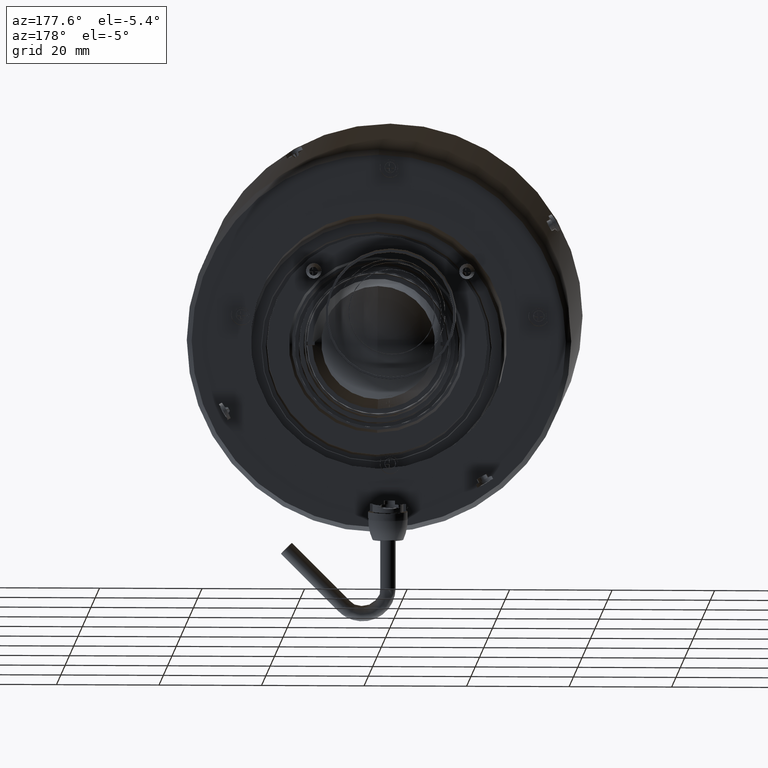
[diagram: clean part render]
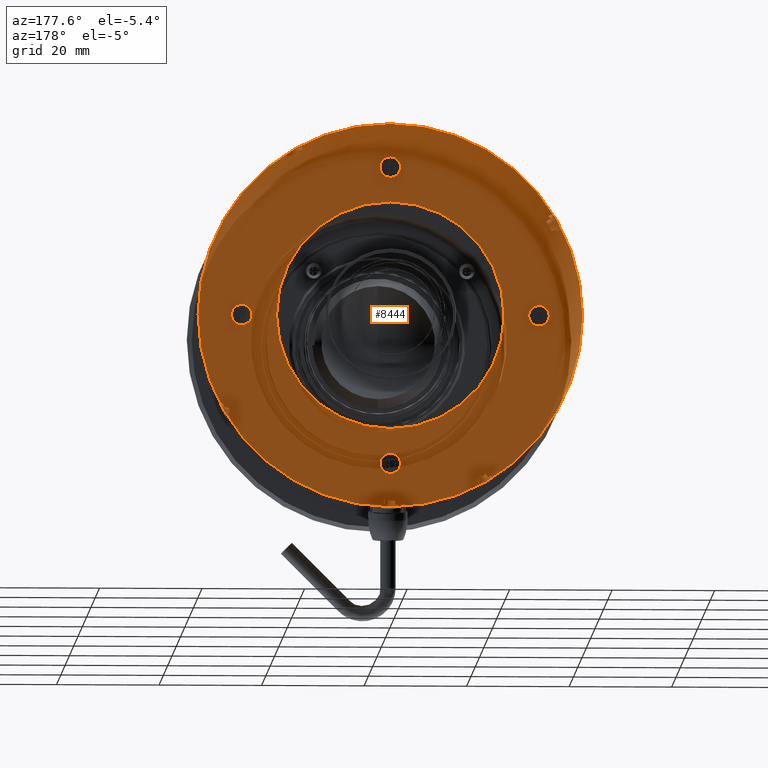
[diagram: same view with one face highlighted and labeled with its STEP entity id]
A machine part, auxiliary view. The second image highlights one B-rep face of the part: STEP entity #8444.
In plain terms, the highlighted planar face has unit normal (-0, -1, 0).
Its self-contained STEP definition (entity closure, byte-faithful):
#31 = EDGE_LOOP ( 'NONE', ( #2455 ) ) ;
#467 = CIRCLE ( 'NONE', #2396, 1.999999999999990008 ) ;
#699 = CIRCLE ( 'NONE', #3586, 1.999999999999990008 ) ;
#733 = CARTESIAN_POINT ( 'NONE',  ( 29.00000000000000000, -17.80000000000010019, -1.999999999999989120 ) ) ;
#1079 = EDGE_LOOP ( 'NONE', ( #7286 ) ) ;
#1389 = CARTESIAN_POINT ( 'NONE',  ( -7.299329788463259972E-16, -17.80000000000010019, 22.19999999999999929 ) ) ;
#1458 = VERTEX_POINT ( 'NONE', #4240 ) ;
#1506 = VERTEX_POINT ( 'NONE', #1389 ) ;
#2072 = FACE_BOUND ( 'NONE', #7245, .T. ) ;
#2283 = DIRECTION ( 'NONE',  ( 0.000000000000000000, 0.000000000000000000, -1.000000000000000000 ) ) ;
#2396 = AXIS2_PLACEMENT_3D ( 'NONE', #4191, #8908, #9872 ) ;
#2455 = ORIENTED_EDGE ( 'NONE', *, *, #3219, .F. ) ;
#2573 = DIRECTION ( 'NONE',  ( -0.000000000000000000, 1.000000000000000000, -0.000000000000000000 ) ) ;
#2637 = EDGE_CURVE ( 'NONE', #1458, #1458, #467, .T. ) ;
#2914 = DIRECTION ( 'NONE',  ( 1.000000000000000000, -6.123031769111889989E-17, 0.000000000000000000 ) ) ;
#3005 = DIRECTION ( 'NONE',  ( -0.000000000000000000, 1.000000000000000000, -6.123031769111880128E-17 ) ) ;
#3024 = DIRECTION ( 'NONE',  ( 0.000000000000000000, -1.000000000000000000, 0.000000000000000000 ) ) ;
#3219 = EDGE_CURVE ( 'NONE', #10944, #10944, #4338, .T. ) ;
#3586 = AXIS2_PLACEMENT_3D ( 'NONE', #10518, #7738, #10402 ) ;
#3860 = CARTESIAN_POINT ( 'NONE',  ( -29.00000000000000000, -17.80000000000010019, -1.999999999999994449 ) ) ;
#4023 = CIRCLE ( 'NONE', #8457, 1.999999999999990008 ) ;
#4191 = CARTESIAN_POINT ( 'NONE',  ( 6.723585862719920633E-16, -17.80000000000010019, -29.00000000000000000 ) ) ;
#4240 = CARTESIAN_POINT ( 'NONE',  ( 1.999999999999990896, -17.80000000000010019, -29.00000000000000000 ) ) ;
#4338 = CIRCLE ( 'NONE', #11477, 37.50000000000000000 ) ;
#4407 = CARTESIAN_POINT ( 'NONE',  ( -7.299329788463259972E-16, -17.80000000000010019, 0.000000000000000000 ) ) ;
#4712 = VERTEX_POINT ( 'NONE', #3860 ) ;
#4731 = FACE_BOUND ( 'NONE', #11391, .T. ) ;
#4741 = EDGE_CURVE ( 'NONE', #9913, #9913, #699, .T. ) ;
#4795 = FACE_BOUND ( 'NONE', #6415, .T. ) ;
#4856 = FACE_BOUND ( 'NONE', #1079, .T. ) ;
#5005 = AXIS2_PLACEMENT_3D ( 'NONE', #6084, #2573, #6931 ) ;
#5474 = ORIENTED_EDGE ( 'NONE', *, *, #7542, .F. ) ;
#5548 = DIRECTION ( 'NONE',  ( 0.000000000000000000, 0.000000000000000000, 1.000000000000000000 ) ) ;
#5773 = CIRCLE ( 'NONE', #5005, 1.999999999999991340 ) ;
#5790 = EDGE_LOOP ( 'NONE', ( #6267 ) ) ;
#5820 = FACE_BOUND ( 'NONE', #5790, .T. ) ;
#6084 = CARTESIAN_POINT ( 'NONE',  ( -7.299329788463259972E-16, -17.80000000000010019, 29.00000000000000000 ) ) ;
#6267 = ORIENTED_EDGE ( 'NONE', *, *, #4741, .F. ) ;
#6415 = EDGE_LOOP ( 'NONE', ( #8360 ) ) ;
#6775 = DIRECTION ( 'NONE',  ( 0.000000000000000000, 0.000000000000000000, -1.000000000000000000 ) ) ;
#6869 = CARTESIAN_POINT ( 'NONE',  ( -29.00000000000000000, -17.80000000000010019, -4.252621500086480250E-15 ) ) ;
#6931 = DIRECTION ( 'NONE',  ( 0.000000000000000000, 0.000000000000000000, -1.000000000000000000 ) ) ;
#7130 = CIRCLE ( 'NONE', #9631, 22.19999999999999929 ) ;
#7245 = EDGE_LOOP ( 'NONE', ( #10012 ) ) ;
#7286 = ORIENTED_EDGE ( 'NONE', *, *, #7758, .F. ) ;
#7512 = CARTESIAN_POINT ( 'NONE',  ( -1.804525055050839976E-15, -17.80000000000010019, 21.00000000000009948 ) ) ;
#7542 = EDGE_CURVE ( 'NONE', #4712, #4712, #4023, .T. ) ;
#7629 = PLANE ( 'NONE',  #11178 ) ;
#7738 = DIRECTION ( 'NONE',  ( -0.000000000000000000, 1.000000000000000000, 6.123031769111889989E-17 ) ) ;
#7758 = EDGE_CURVE ( 'NONE', #10391, #10391, #5773, .T. ) ;
#8090 = DIRECTION ( 'NONE',  ( -0.000000000000000000, 1.000000000000000000, 0.000000000000000000 ) ) ;
#8360 = ORIENTED_EDGE ( 'NONE', *, *, #2637, .F. ) ;
#8444 = ADVANCED_FACE ( 'NONE', ( #9380, #4856, #5820, #4795, #4731, #2072 ), #7629, .F. ) ;
#8457 = AXIS2_PLACEMENT_3D ( 'NONE', #6869, #3005, #2283 ) ;
#8586 = EDGE_CURVE ( 'NONE', #1506, #1506, #7130, .T. ) ;
#8908 = DIRECTION ( 'NONE',  ( 1.224606353822379970E-16, 1.000000000000000000, -0.000000000000000000 ) ) ;
#9380 = FACE_OUTER_BOUND ( 'NONE', #31, .T. ) ;
#9631 = AXIS2_PLACEMENT_3D ( 'NONE', #4407, #8090, #5548 ) ;
#9872 = DIRECTION ( 'NONE',  ( 1.000000000000000000, 0.000000000000000000, 0.000000000000000000 ) ) ;
#9913 = VERTEX_POINT ( 'NONE', #733 ) ;
#10012 = ORIENTED_EDGE ( 'NONE', *, *, #8586, .F. ) ;
#10212 = CARTESIAN_POINT ( 'NONE',  ( 0.000000000000000000, -17.80000000000010019, 0.000000000000000000 ) ) ;
#10226 = DIRECTION ( 'NONE',  ( -6.123031769111889989E-17, -1.000000000000000000, 0.000000000000000000 ) ) ;
#10391 = VERTEX_POINT ( 'NONE', #10627 ) ;
#10402 = DIRECTION ( 'NONE',  ( 0.000000000000000000, 0.000000000000000000, -1.000000000000000000 ) ) ;
#10518 = CARTESIAN_POINT ( 'NONE',  ( 29.00000000000000000, -17.80000000000010019, 7.011457825591571074E-16 ) ) ;
#10627 = CARTESIAN_POINT ( 'NONE',  ( -7.299329788463259972E-16, -17.80000000000010019, 27.00000000000001066 ) ) ;
#10768 = CARTESIAN_POINT ( 'NONE',  ( 0.000000000000000000, -17.80000000000010019, -37.50000000000000000 ) ) ;
#10944 = VERTEX_POINT ( 'NONE', #10768 ) ;
#11178 = AXIS2_PLACEMENT_3D ( 'NONE', #7512, #10226, #2914 ) ;
#11391 = EDGE_LOOP ( 'NONE', ( #5474 ) ) ;
#11477 = AXIS2_PLACEMENT_3D ( 'NONE', #10212, #3024, #6775 ) ;